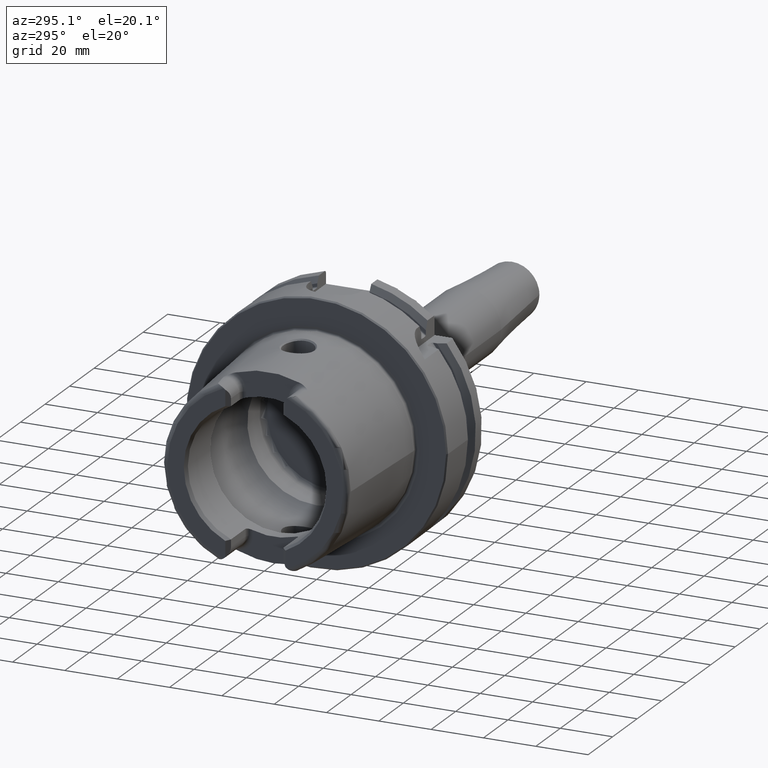
[diagram: clean part render]
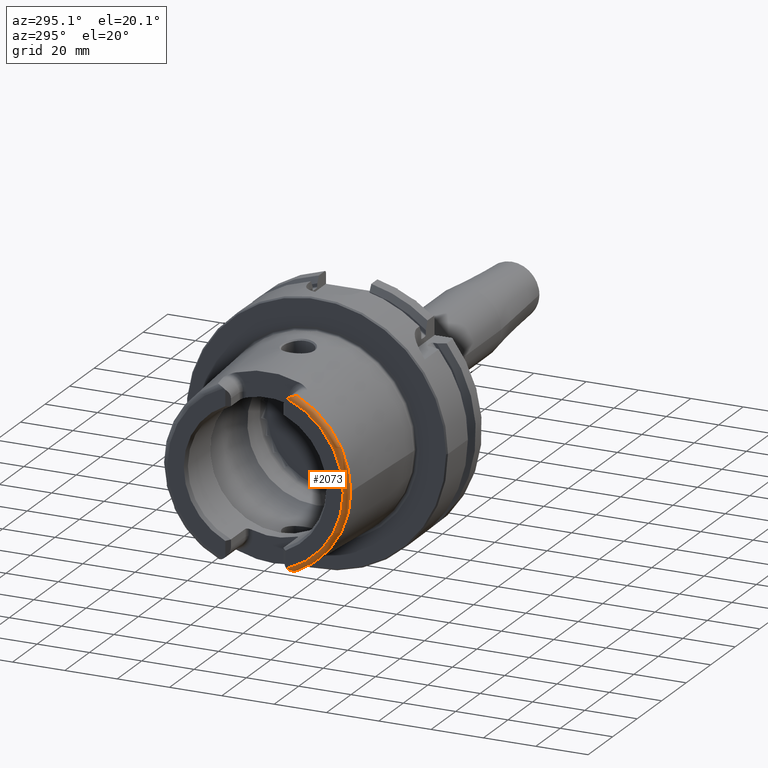
[diagram: same view with one face highlighted and labeled with its STEP entity id]
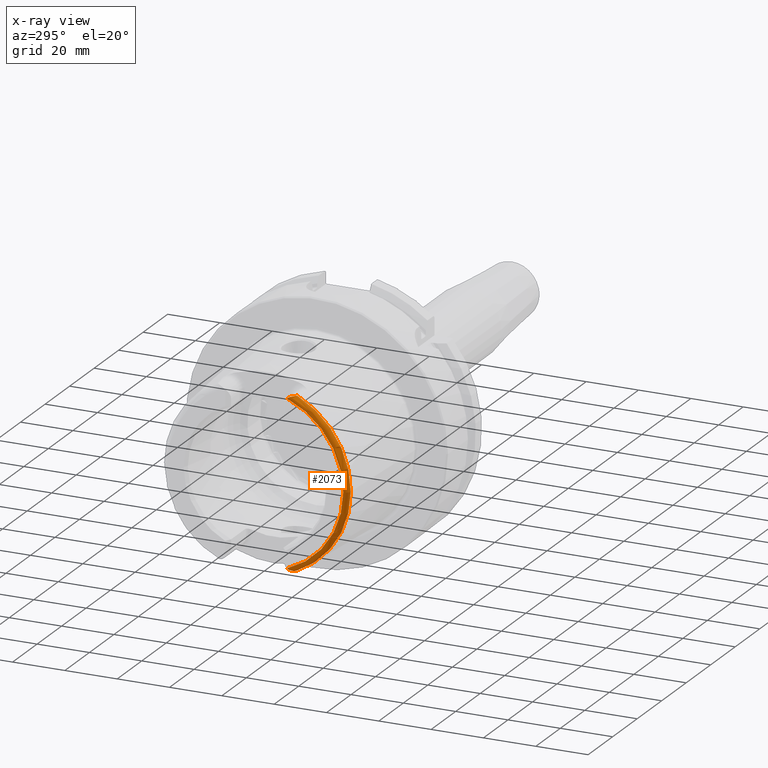
[diagram: x-ray of the same camera — body ghosted, the highlighted face saturated]
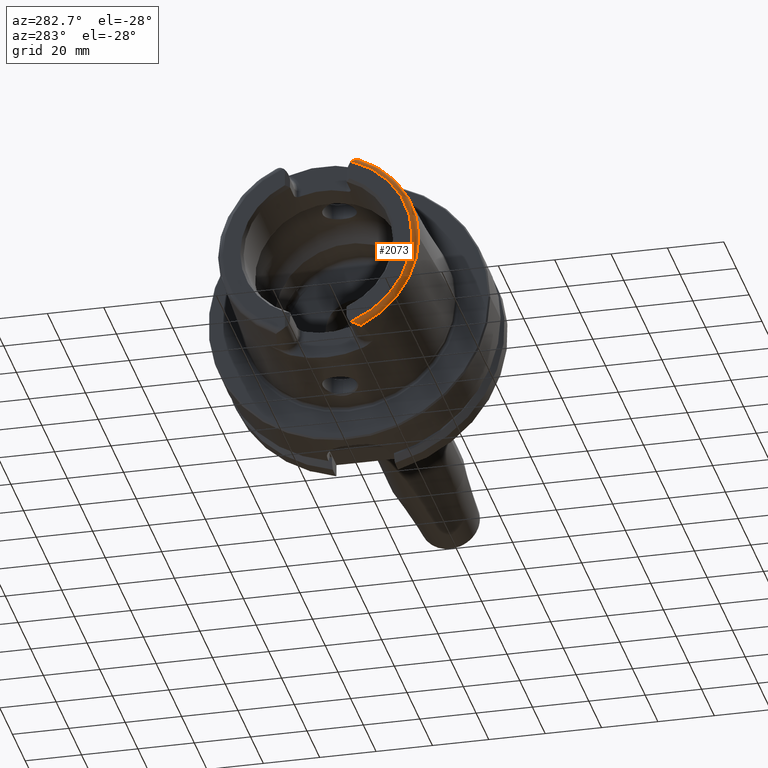
[diagram: same view with one face highlighted and labeled with its STEP entity id]
A machine part, auxiliary view. The second image highlights one B-rep face of the part: STEP entity #2073.
The next image is the same camera in x-ray: the body ghosted, the highlighted face saturated — about 0% of this face is hidden behind the body in this view.
A second angle (auxiliary view) of the same face is appended — the face is thin or edge-on in the first view.
In plain terms, the highlighted toroidal blend (fillet) surface has major radius 33.6002 mm and minor (blend) radius 2 mm.
Its self-contained STEP definition (entity closure, byte-faithful):
#33=B_SPLINE_CURVE_WITH_KNOTS('',3,(#3204,#3205,#3206,#3207,#3208,#3209,
#3210,#3211,#3212,#3213,#3214,#3215),.UNSPECIFIED.,.F.,.F.,(4,2,2,2,2,4),
(-0.744571126726518,-0.701342830888641,-0.656522678464628,-0.531122919946975,
-0.406784567241786,-0.320835419118986),.UNSPECIFIED.);
#84=B_SPLINE_CURVE_WITH_KNOTS('',3,(#4431,#4432,#4433,#4434,#4435,#4436,
#4437,#4438,#4439,#4440,#4441,#4442),.UNSPECIFIED.,.F.,.F.,(4,2,2,2,2,4),
(-0.330531435638092,-0.267908000768824,-0.159978118105095,-0.0786368985358016,
-0.0319888850382436,0.),.UNSPECIFIED.);
#153=TOROIDAL_SURFACE('',#2322,33.6001839277785,2.);
#298=FACE_OUTER_BOUND('',#427,.T.);
#427=EDGE_LOOP('',(#1820,#1821,#1822,#1823,#1824));
#708=CIRCLE('',#2188,33.6001839277785);
#714=CIRCLE('',#2204,35.5976786130245);
#718=CIRCLE('',#2208,35.5976786130245);
#860=VERTEX_POINT('',#3185);
#861=VERTEX_POINT('',#3187);
#866=VERTEX_POINT('',#3203);
#881=VERTEX_POINT('',#3422);
#882=VERTEX_POINT('',#3424);
#1082=EDGE_CURVE('',#861,#860,#708,.T.);
#1090=EDGE_CURVE('',#866,#861,#33,.T.);
#1110=EDGE_CURVE('',#881,#882,#714,.T.);
#1123=EDGE_CURVE('',#866,#881,#718,.T.);
#1287=EDGE_CURVE('',#860,#882,#84,.T.);
#1820=ORIENTED_EDGE('',*,*,#1090,.T.);
#1821=ORIENTED_EDGE('',*,*,#1082,.T.);
#1822=ORIENTED_EDGE('',*,*,#1287,.T.);
#1823=ORIENTED_EDGE('',*,*,#1110,.F.);
#1824=ORIENTED_EDGE('',*,*,#1123,.F.);
#2073=ADVANCED_FACE('',(#298),#153,.T.);
#2188=AXIS2_PLACEMENT_3D('',#3188,#2539,#2540);
#2204=AXIS2_PLACEMENT_3D('',#3425,#2583,#2584);
#2208=AXIS2_PLACEMENT_3D('',#3552,#2591,#2592);
#2322=AXIS2_PLACEMENT_3D('',#4430,#2877,#2878);
#2539=DIRECTION('center_axis',(1.,0.,0.));
#2540=DIRECTION('ref_axis',(0.,0.,-1.));
#2583=DIRECTION('center_axis',(1.,0.,0.));
#2584=DIRECTION('ref_axis',(0.,0.,-1.));
#2591=DIRECTION('center_axis',(1.,0.,0.));
#2592=DIRECTION('ref_axis',(0.,0.,-1.));
#2877=DIRECTION('center_axis',(1.,0.,0.));
#2878=DIRECTION('ref_axis',(0.,0.,-1.));
#3185=CARTESIAN_POINT('',(-50.,-12.0743049948301,-31.355757348091));
#3187=CARTESIAN_POINT('',(-50.,-12.0743049948301,31.355757348091));
#3188=CARTESIAN_POINT('Origin',(-50.,0.,0.));
#3203=CARTESIAN_POINT('',(-48.1000748840304,-15.0787152148571,32.2463497175327));
#3204=CARTESIAN_POINT('Ctrl Pts',(-48.1000748840304,-15.0787152148571,32.2463497175327));
#3205=CARTESIAN_POINT('Ctrl Pts',(-48.2106037175751,-15.0644627457708,32.2469012894916));
#3206=CARTESIAN_POINT('Ctrl Pts',(-48.3154292138326,-15.0273539899824,32.2483385926998));
#3207=CARTESIAN_POINT('Ctrl Pts',(-48.5163157198425,-14.9224481921473,32.2501843906849));
#3208=CARTESIAN_POINT('Ctrl Pts',(-48.6121978837474,-14.8534224082598,32.2504380645671));
#3209=CARTESIAN_POINT('Ctrl Pts',(-48.945264184207,-14.5689466462258,32.2439376039327));
#3210=CARTESIAN_POINT('Ctrl Pts',(-49.1880723127852,-14.2607780319834,32.2227822574558));
#3211=CARTESIAN_POINT('Ctrl Pts',(-49.6101150709732,-13.5547183211213,32.0774653757186));
#3212=CARTESIAN_POINT('Ctrl Pts',(-49.7793847368059,-13.1765954395989,31.957165019384));
#3213=CARTESIAN_POINT('Ctrl Pts',(-49.9574602860506,-12.5580264083439,31.6658578550016));
#3214=CARTESIAN_POINT('Ctrl Pts',(-50.,-12.3091419271059,31.5216553492714));
#3215=CARTESIAN_POINT('Ctrl Pts',(-50.,-12.0743049948301,31.355757348091));
#3422=CARTESIAN_POINT('',(-48.1000748840304,-35.5976786130245,-4.35945831705167E-15));
#3424=CARTESIAN_POINT('',(-48.1000748840304,-15.0787152148571,-32.2463497175327));
#3425=CARTESIAN_POINT('Origin',(-48.1000748840304,0.,0.));
#3552=CARTESIAN_POINT('Origin',(-48.1000748840304,0.,0.));
#4430=CARTESIAN_POINT('Origin',(-48.,0.,0.));
#4431=CARTESIAN_POINT('Ctrl Pts',(-50.,-12.0743049948301,-31.355757348091));
#4432=CARTESIAN_POINT('Ctrl Pts',(-50.,-12.2858381230511,-31.5051926299064));
#4433=CARTESIAN_POINT('Ctrl Pts',(-49.9653696826563,-12.5170331398669,-31.6430588255455));
#4434=CARTESIAN_POINT('Ctrl Pts',(-49.7810065498998,-13.1911222585011,-31.9692156023964));
#4435=CARTESIAN_POINT('Ctrl Pts',(-49.5806767805337,-13.6194685503754,-32.0969374367804));
#4436=CARTESIAN_POINT('Ctrl Pts',(-49.1716377200869,-14.2730899346346,-32.2192774131036));
#4437=CARTESIAN_POINT('Ctrl Pts',(-48.9774936618895,-14.5201969661755,-32.2395201073332));
#4438=CARTESIAN_POINT('Ctrl Pts',(-48.6675943633755,-14.8125911006811,-32.2505512851489));
#4439=CARTESIAN_POINT('Ctrl Pts',(-48.5398374959924,-14.912197389574,-32.2504544601106));
#4440=CARTESIAN_POINT('Ctrl Pts',(-48.3063803700173,-15.0305209025154,-32.2482139663407));
#4441=CARTESIAN_POINT('Ctrl Pts',(-48.2058276135777,-15.0650786147019,-32.2468774553032));
#4442=CARTESIAN_POINT('Ctrl Pts',(-48.1000748840304,-15.0787152148571,-32.2463497175327));